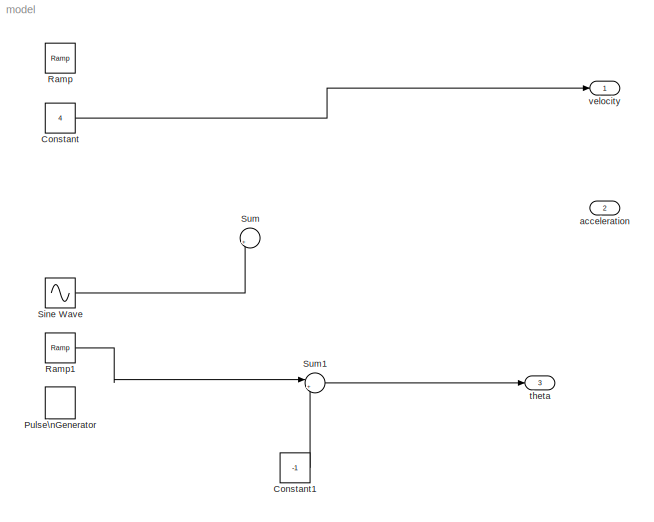
MODEL model
KIND model
BLOCK [Constant] Constant
  SID = 7
  Value = 4
BLOCK [Constant] Constant1
  SID = 9
  Value = -1
BLOCK [DiscretePulseGenerator] Pulse\nGenerator
  Amplitude = -1
  Period = 5
  Ports = [0, 1]
  PulseType = Time based
  PulseWidth = 50
  SID = 13
BLOCK [Reference] Ramp  REF=simulink/Sources/Ramp
  Ports = [0, 1]
  SID = 2
  SourceBlock = simulink/Sources/Ramp
  SourceType = Ramp
  VectorParams1D = on
  X0 = 0
  slope = 0.1
  start = 0
BLOCK [Reference] Ramp1  REF=simulink/Sources/Ramp
  Ports = [0, 1]
  SID = 8
  SourceBlock = simulink/Sources/Ramp
  SourceType = Ramp
  VectorParams1D = on
  X0 = 0
  slope = 2/100
  start = 0
BLOCK [Sin] Sine Wave
  Bias = 1
  Frequency = 5
  Ports = [0, 1]
  SID = 12
  SampleTime = 0
BLOCK [Sum] Sum
  IconShape = round
  InputSameDT = off
  Inputs = |++
  OutDataTypeStr = Inherit: Inherit via internal rule
  Ports = [2, 1]
  SID = 20
  SaturateOnIntegerOverflow = off
BLOCK [Sum] Sum1
  IconShape = round
  InputSameDT = off
  Inputs = |++
  OutDataTypeStr = Inherit: Inherit via internal rule
  Ports = [2, 1]
  SID = 21
  SaturateOnIntegerOverflow = off
BLOCK [Outport] acceleration
  IconDisplay = Port number
  Port = 2
  SID = 5
BLOCK [Outport] theta
  IconDisplay = Port number
  Port = 3
  SID = 6
BLOCK [Outport] velocity
  IconDisplay = Port number
  SID = 3
LINE Constant1:1 -> Sum1:2
LINE Constant:1 -> velocity:1
LINE Ramp1:1 -> Sum1:1
LINE Sine Wave:1 -> Sum:2
LINE Sum1:1 -> theta:1
